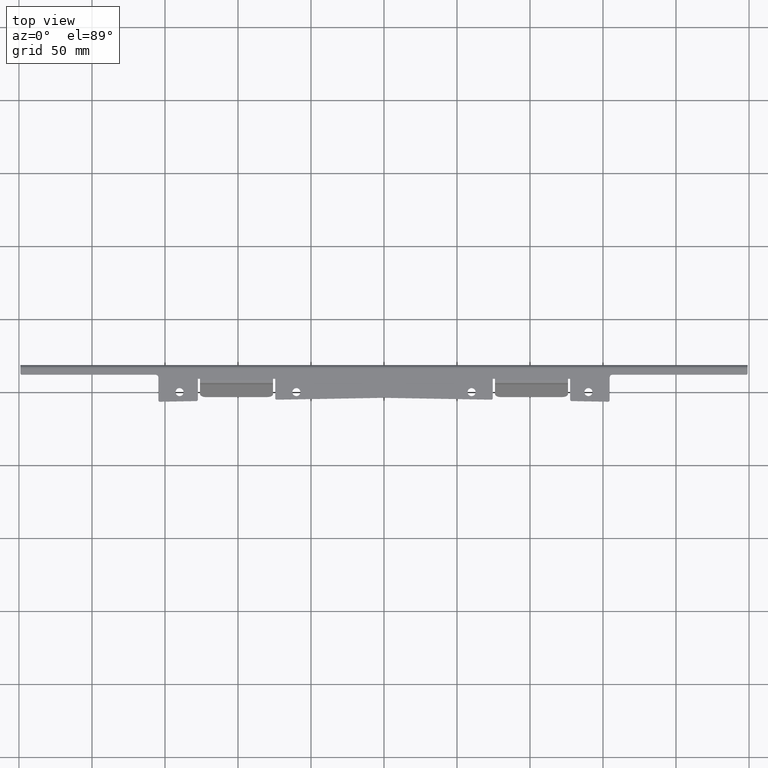
[diagram: clean part render]
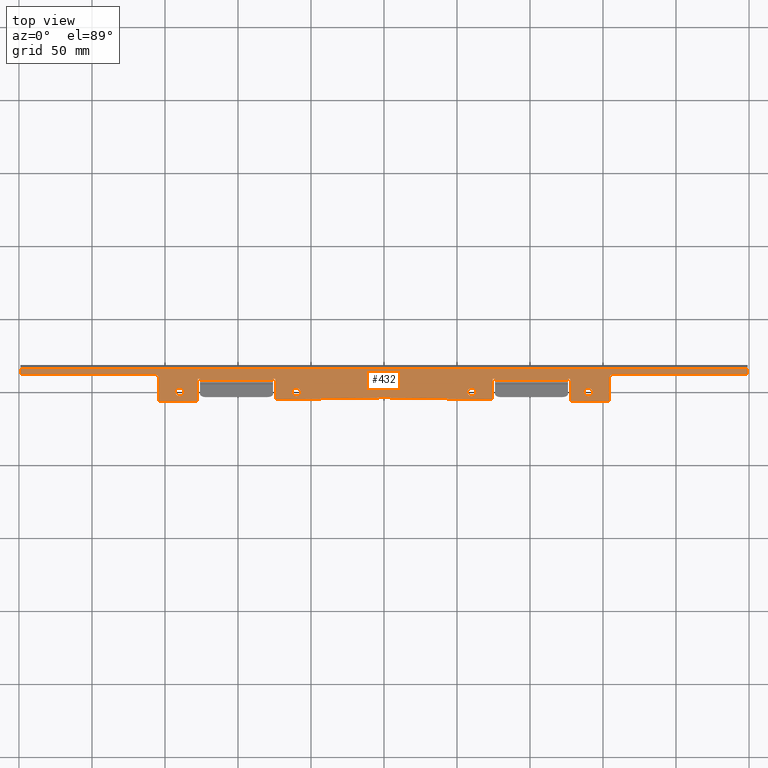
[diagram: same view with one face highlighted and labeled with its STEP entity id]
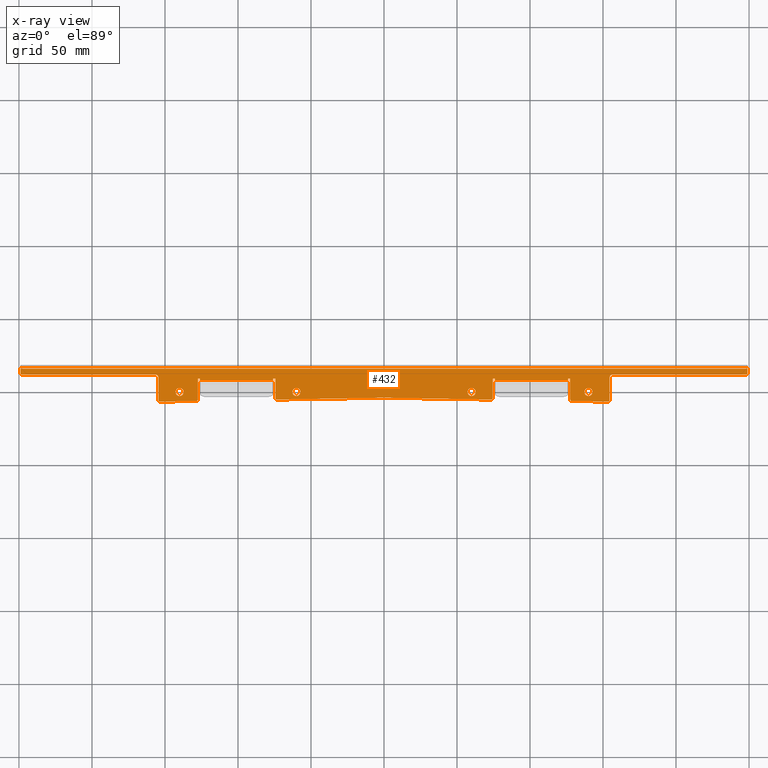
[diagram: x-ray of the same camera — body ghosted, the highlighted face saturated]
A machine part, top view. The second image highlights one B-rep face of the part: STEP entity #432.
The next image is the same camera in x-ray: the body ghosted, the highlighted face saturated — about 0% of this face is hidden behind the body in this view.
In plain terms, the highlighted planar face has unit normal (0, 0, -1).
Its self-contained STEP definition (entity closure, byte-faithful):
#2 = DIRECTION ( 'NONE',  ( -1.000000000000000000, 0.0000000000000000000, 0.0000000000000000000 ) ) ;
#8 = VERTEX_POINT ( 'NONE', #1864 ) ;
#12 = DIRECTION ( 'NONE',  ( -0.0000000000000000000, -0.0000000000000000000, 1.000000000000000000 ) ) ;
#32 = VECTOR ( 'NONE', #1382, 1000.000000000000000 ) ;
#33 = CARTESIAN_POINT ( 'NONE',  ( 154.4979356401569500, 11.27738266714972700, 0.0000000000000000000 ) ) ;
#42 = CARTESIAN_POINT ( 'NONE',  ( -74.50000000000001400, 8.577382667149670700, 0.0000000000000000000 ) ) ;
#43 = VECTOR ( 'NONE', #1676, 1000.000000000000000 ) ;
#44 = VERTEX_POINT ( 'NONE', #2051 ) ;
#62 = LINE ( 'NONE', #105, #1268 ) ;
#66 = EDGE_CURVE ( 'NONE', #1739, #304, #1253, .T. ) ;
#81 = DIRECTION ( 'NONE',  ( -1.000000000000000000, 0.0000000000000000000, 0.0000000000000000000 ) ) ;
#104 = EDGE_CURVE ( 'NONE', #1620, #2834, #543, .T. ) ;
#105 = CARTESIAN_POINT ( 'NONE',  ( 154.4979356401569500, -7.219388830725374200, 0.0000000000000000000 ) ) ;
#107 = ORIENTED_EDGE ( 'NONE', *, *, #1923, .T. ) ;
#113 = ORIENTED_EDGE ( 'NONE', *, *, #1274, .T. ) ;
#116 = AXIS2_PLACEMENT_3D ( 'NONE', #2134, #1067, #1293 ) ;
#117 = CARTESIAN_POINT ( 'NONE',  ( 74.50000000000001400, -5.823019670002781600, 0.0000000000000000000 ) ) ;
#130 = DIRECTION ( 'NONE',  ( 0.0000000000000000000, 0.0000000000000000000, -1.000000000000000000 ) ) ;
#134 = DIRECTION ( 'NONE',  ( 0.0000000000000000000, 0.0000000000000000000, 1.000000000000000000 ) ) ;
#142 = DIRECTION ( 'NONE',  ( -1.000000000000000000, 0.0000000000000000000, 0.0000000000000000000 ) ) ;
#149 = DIRECTION ( 'NONE',  ( -1.000000000000000000, 0.0000000000000000000, -0.0000000000000000000 ) ) ;
#153 = EDGE_CURVE ( 'NONE', #44, #1134, #2761, .T. ) ;
#155 = CIRCLE ( 'NONE', #2231, 2.750000000000030200 ) ;
#161 = VERTEX_POINT ( 'NONE', #581 ) ;
#166 = VERTEX_POINT ( 'NONE', #806 ) ;
#173 = CARTESIAN_POINT ( 'NONE',  ( 76.00000000000001400, 7.577382667149658200, 0.0000000000000000000 ) ) ;
#176 = ORIENTED_EDGE ( 'NONE', *, *, #775, .T. ) ;
#195 = VERTEX_POINT ( 'NONE', #2706 ) ;
#196 = CARTESIAN_POINT ( 'NONE',  ( -57.24999999999997900, -0.6226173328502879700, 0.0000000000000000000 ) ) ;
#197 = CARTESIAN_POINT ( 'NONE',  ( -74.50000000000001400, -5.823019670002781600, 0.0000000000000000000 ) ) ;
#208 = EDGE_CURVE ( 'NONE', #561, #610, #2361, .T. ) ;
#228 = VERTEX_POINT ( 'NONE', #494 ) ;
#230 = ORIENTED_EDGE ( 'NONE', *, *, #231, .F. ) ;
#231 = EDGE_CURVE ( 'NONE', #2343, #1613, #868, .T. ) ;
#243 = ORIENTED_EDGE ( 'NONE', *, *, #719, .T. ) ;
#259 = ORIENTED_EDGE ( 'NONE', *, *, #1243, .T. ) ;
#261 = ORIENTED_EDGE ( 'NONE', *, *, #846, .T. ) ;
#264 = VERTEX_POINT ( 'NONE', #2040 ) ;
#265 = EDGE_CURVE ( 'NONE', #2834, #166, #1707, .T. ) ;
#267 = DIRECTION ( 'NONE',  ( -1.000000000000000000, 0.0000000000000000000, 0.0000000000000000000 ) ) ;
#269 = CARTESIAN_POINT ( 'NONE',  ( -74.50000000000001400, 8.577382667149670700, 0.0000000000000000000 ) ) ;
#289 = DIRECTION ( 'NONE',  ( -1.000000000000000000, 0.0000000000000000000, 0.0000000000000000000 ) ) ;
#291 = ORIENTED_EDGE ( 'NONE', *, *, #1520, .F. ) ;
#294 = DIRECTION ( 'NONE',  ( 0.0000000000000000000, -1.000000000000000000, 0.0000000000000000000 ) ) ;
#304 = VERTEX_POINT ( 'NONE', #967 ) ;
#310 = LINE ( 'NONE', #197, #1982 ) ;
#332 = CARTESIAN_POINT ( 'NONE',  ( 248.0000000000000000, 12.27738266714975000, 0.0000000000000000000 ) ) ;
#333 = CARTESIAN_POINT ( 'NONE',  ( 249.0000000000000000, 12.27738266714975000, 0.0000000000000000000 ) ) ;
#343 = DIRECTION ( 'NONE',  ( -0.0000000000000000000, -1.000000000000000000, -0.0000000000000000000 ) ) ;
#350 = DIRECTION ( 'NONE',  ( 0.0000000000000000000, 0.0000000000000000000, 1.000000000000000000 ) ) ;
#351 = EDGE_CURVE ( 'NONE', #1158, #1620, #654, .T. ) ;
#366 = ORIENTED_EDGE ( 'NONE', *, *, #420, .T. ) ;
#375 = VECTOR ( 'NONE', #393, 1000.000000000000000 ) ;
#385 = CARTESIAN_POINT ( 'NONE',  ( 126.0000000000000000, 7.577382667149652000, 0.0000000000000000000 ) ) ;
#393 = DIRECTION ( 'NONE',  ( 1.000000000000000000, 0.0000000000000000000, 0.0000000000000000000 ) ) ;
#420 = EDGE_CURVE ( 'NONE', #2592, #2607, #1565, .T. ) ;
#424 = EDGE_CURVE ( 'NONE', #8, #1739, #1670, .T. ) ;
#432 = ADVANCED_FACE ( 'NONE', ( #503, #755, #2357, #1599, #2011 ), #1672, .F. ) ;
#438 = CIRCLE ( 'NONE', #1543, 1.000000000000000900 ) ;
#473 = EDGE_CURVE ( 'NONE', #195, #1467, #2246, .T. ) ;
#486 = CIRCLE ( 'NONE', #1549, 1.000000000000000900 ) ;
#488 = EDGE_CURVE ( 'NONE', #510, #1158, #1403, .T. ) ;
#491 = DIRECTION ( 'NONE',  ( 1.000000000000000000, -0.0000000000000000000, -0.0000000000000000000 ) ) ;
#494 = CARTESIAN_POINT ( 'NONE',  ( -127.5000000000000000, -5.765440848082815400, 0.0000000000000000000 ) ) ;
#503 = FACE_BOUND ( 'NONE', #1052, .T. ) ;
#504 = EDGE_CURVE ( 'NONE', #2419, #735, #1070, .T. ) ;
#510 = VERTEX_POINT ( 'NONE', #866 ) ;
#514 = AXIS2_PLACEMENT_3D ( 'NONE', #2380, #1927, #2 ) ;
#519 = DIRECTION ( 'NONE',  ( 0.9998476951563911600, -0.01745240643728700500, -0.0000000000000000000 ) ) ;
#531 = AXIS2_PLACEMENT_3D ( 'NONE', #2811, #1487, #2377 ) ;
#533 = DIRECTION ( 'NONE',  ( -1.000000000000000000, -0.0000000000000000000, -0.0000000000000000000 ) ) ;
#540 = EDGE_CURVE ( 'NONE', #727, #161, #310, .T. ) ;
#543 = LINE ( 'NONE', #977, #1233 ) ;
#553 = CARTESIAN_POINT ( 'NONE',  ( 73.48254759356272800, -5.805259972187044100, 0.0000000000000000000 ) ) ;
#561 = VERTEX_POINT ( 'NONE', #1486 ) ;
#566 = EDGE_CURVE ( 'NONE', #2493, #2350, #688, .T. ) ;
#568 = CARTESIAN_POINT ( 'NONE',  ( -154.4979356401569500, 11.27738266714972700, 0.0000000000000000000 ) ) ;
#581 = CARTESIAN_POINT ( 'NONE',  ( -74.50000000000001400, -4.805412277030652200, 0.0000000000000000000 ) ) ;
#583 = DIRECTION ( 'NONE',  ( 1.000000000000000000, 0.0000000000000000000, 0.0000000000000000000 ) ) ;
#591 = ORIENTED_EDGE ( 'NONE', *, *, #1188, .F. ) ;
#606 = ORIENTED_EDGE ( 'NONE', *, *, #1787, .T. ) ;
#610 = VERTEX_POINT ( 'NONE', #1760 ) ;
#631 = CARTESIAN_POINT ( 'NONE',  ( -154.4979356401569500, 9.277382667149726800, 0.0000000000000000000 ) ) ;
#642 = VERTEX_POINT ( 'NONE', #1951 ) ;
#646 = CARTESIAN_POINT ( 'NONE',  ( -128.5000000000000000, -5.765440848082815400, 0.0000000000000000000 ) ) ;
#651 = LINE ( 'NONE', #1234, #1162 ) ;
#654 = CIRCLE ( 'NONE', #1825, 1.000000000000000900 ) ;
#672 = VECTOR ( 'NONE', #2730, 1000.000000000000000 ) ;
#676 = DIRECTION ( 'NONE',  ( -0.0000000000000000000, 1.000000000000000000, -0.0000000000000000000 ) ) ;
#688 = CIRCLE ( 'NONE', #116, 1.000000000000000900 ) ;
#719 = EDGE_CURVE ( 'NONE', #166, #2493, #1598, .T. ) ;
#725 = VECTOR ( 'NONE', #676, 1000.000000000000000 ) ;
#727 = VERTEX_POINT ( 'NONE', #42 ) ;
#729 = DIRECTION ( 'NONE',  ( -0.0000000000000000000, -0.0000000000000000000, 1.000000000000000000 ) ) ;
#730 = CARTESIAN_POINT ( 'NONE',  ( -248.0000000000000000, 11.27738266714975000, 0.0000000000000000000 ) ) ;
#732 = EDGE_CURVE ( 'NONE', #1868, #2240, #438, .T. ) ;
#735 = VERTEX_POINT ( 'NONE', #1998 ) ;
#751 = CARTESIAN_POINT ( 'NONE',  ( -249.0000000000000000, 12.27738266714975000, 0.0000000000000000000 ) ) ;
#755 = FACE_BOUND ( 'NONE', #2099, .T. ) ;
#770 = DIRECTION ( 'NONE',  ( -1.000000000000000000, 0.0000000000000000000, 0.0000000000000000000 ) ) ;
#775 = EDGE_CURVE ( 'NONE', #1643, #727, #2244, .T. ) ;
#792 = ORIENTED_EDGE ( 'NONE', *, *, #153, .F. ) ;
#806 = CARTESIAN_POINT ( 'NONE',  ( -249.0000000000000000, 15.37738266714962700, 0.0000000000000000000 ) ) ;
#824 = CARTESIAN_POINT ( 'NONE',  ( 73.50000000000001400, -4.805412277030653100, 0.0000000000000000000 ) ) ;
#828 = ORIENTED_EDGE ( 'NONE', *, *, #732, .T. ) ;
#833 = CARTESIAN_POINT ( 'NONE',  ( -76.00000000000001400, 8.577382667149670700, 0.0000000000000000000 ) ) ;
#846 = EDGE_CURVE ( 'NONE', #2240, #2516, #62, .T. ) ;
#866 = CARTESIAN_POINT ( 'NONE',  ( 156.4979356401569500, 11.27738266714972700, 0.0000000000000000000 ) ) ;
#868 = CIRCLE ( 'NONE', #2478, 2.750000000000030200 ) ;
#883 = ORIENTED_EDGE ( 'NONE', *, *, #2515, .F. ) ;
#888 = CARTESIAN_POINT ( 'NONE',  ( 127.5000000000000000, 8.577382667149718600, 0.0000000000000000000 ) ) ;
#899 = CIRCLE ( 'NONE', #2570, 1.000000000000000900 ) ;
#902 = EDGE_CURVE ( 'NONE', #2607, #1643, #1763, .T. ) ;
#903 = ORIENTED_EDGE ( 'NONE', *, *, #473, .T. ) ;
#907 = AXIS2_PLACEMENT_3D ( 'NONE', #1443, #134, #1874 ) ;
#910 = LINE ( 'NONE', #2359, #43 ) ;
#928 = ORIENTED_EDGE ( 'NONE', *, *, #988, .T. ) ;
#947 = VECTOR ( 'NONE', #2160, 1000.000000000000000 ) ;
#950 = ORIENTED_EDGE ( 'NONE', *, *, #2540, .T. ) ;
#955 = ORIENTED_EDGE ( 'NONE', *, *, #2476, .T. ) ;
#958 = CARTESIAN_POINT ( 'NONE',  ( -126.0000000000000000, 7.577382667149652000, 0.0000000000000000000 ) ) ;
#960 = VECTOR ( 'NONE', #294, 1000.000000000000000 ) ;
#963 = CARTESIAN_POINT ( 'NONE',  ( 153.4979356401569500, -6.201781437753245600, 0.0000000000000000000 ) ) ;
#966 = CARTESIAN_POINT ( 'NONE',  ( 153.4804832337197000, -7.201629132909636700, 0.0000000000000000000 ) ) ;
#967 = CARTESIAN_POINT ( 'NONE',  ( -154.4979356401569500, -6.201781437753243000, 0.0000000000000000000 ) ) ;
#972 = ORIENTED_EDGE ( 'NONE', *, *, #351, .T. ) ;
#977 = CARTESIAN_POINT ( 'NONE',  ( 249.0000000000000000, 15.37738266714962700, 0.0000000000000000000 ) ) ;
#980 = CARTESIAN_POINT ( 'NONE',  ( -76.00000000000001400, 7.577382667149658200, 0.0000000000000000000 ) ) ;
#988 = EDGE_CURVE ( 'NONE', #264, #1315, #651, .T. ) ;
#993 = EDGE_CURVE ( 'NONE', #1893, #2712, #1535, .T. ) ;
#1006 = CIRCLE ( 'NONE', #2311, 1.000000000000000900 ) ;
#1016 = LINE ( 'NONE', #2545, #1217 ) ;
#1021 = CARTESIAN_POINT ( 'NONE',  ( 140.0000000000000000, -0.6226173328502775400, 0.0000000000000000000 ) ) ;
#1049 = CARTESIAN_POINT ( 'NONE',  ( -76.00000000000001400, 7.577382667149658200, 0.0000000000000000000 ) ) ;
#1052 = EDGE_LOOP ( 'NONE', ( #883, #230 ) ) ;
#1056 = ORIENTED_EDGE ( 'NONE', *, *, #2115, .T. ) ;
#1067 = DIRECTION ( 'NONE',  ( -0.0000000000000000000, -0.0000000000000000000, 1.000000000000000000 ) ) ;
#1070 = CIRCLE ( 'NONE', #1721, 1.000000000000000900 ) ;
#1074 = CARTESIAN_POINT ( 'NONE',  ( 126.0000000000000000, 7.577382667149652000, 0.0000000000000000000 ) ) ;
#1079 = VERTEX_POINT ( 'NONE', #1656 ) ;
#1094 = ORIENTED_EDGE ( 'NONE', *, *, #265, .T. ) ;
#1103 = VECTOR ( 'NONE', #1250, 1000.000000000000000 ) ;
#1115 = CARTESIAN_POINT ( 'NONE',  ( 127.5000000000000000, -5.765440848082815400, 0.0000000000000000000 ) ) ;
#1122 = CARTESIAN_POINT ( 'NONE',  ( -153.4979356401569500, -6.201781437753243000, 0.0000000000000000000 ) ) ;
#1134 = VERTEX_POINT ( 'NONE', #2166 ) ;
#1136 = LINE ( 'NONE', #33, #725 ) ;
#1139 = LINE ( 'NONE', #117, #1514 ) ;
#1142 = AXIS2_PLACEMENT_3D ( 'NONE', #2085, #1661, #149 ) ;
#1152 = VERTEX_POINT ( 'NONE', #2651 ) ;
#1153 = DIRECTION ( 'NONE',  ( 0.0000000000000000000, 0.0000000000000000000, -1.000000000000000000 ) ) ;
#1158 = VERTEX_POINT ( 'NONE', #2801 ) ;
#1162 = VECTOR ( 'NONE', #583, 1000.000000000000000 ) ;
#1177 = CARTESIAN_POINT ( 'NONE',  ( -154.4979356401569500, 11.27738266714972700, 0.0000000000000000000 ) ) ;
#1180 = DIRECTION ( 'NONE',  ( -0.0000000000000000000, -0.0000000000000000000, 1.000000000000000000 ) ) ;
#1182 = CARTESIAN_POINT ( 'NONE',  ( -74.50000000000001400, -5.823019670002781600, 0.0000000000000000000 ) ) ;
#1188 = EDGE_CURVE ( 'NONE', #1134, #44, #1469, .T. ) ;
#1189 = DIRECTION ( 'NONE',  ( 0.9998476951563911600, -0.01745240643728699200, -0.0000000000000000000 ) ) ;
#1194 = VECTOR ( 'NONE', #2511, 1000.000000000000000 ) ;
#1217 = VECTOR ( 'NONE', #343, 1000.000000000000000 ) ;
#1221 = DIRECTION ( 'NONE',  ( -0.0000000000000000000, -0.0000000000000000000, 1.000000000000000000 ) ) ;
#1224 = ORIENTED_EDGE ( 'NONE', *, *, #566, .T. ) ;
#1233 = VECTOR ( 'NONE', #2043, 1000.000000000000000 ) ;
#1234 = CARTESIAN_POINT ( 'NONE',  ( 74.50000000000001400, 8.577382667149670700, 0.0000000000000000000 ) ) ;
#1236 = ORIENTED_EDGE ( 'NONE', *, *, #1587, .T. ) ;
#1243 = EDGE_CURVE ( 'NONE', #642, #1967, #1433, .T. ) ;
#1250 = DIRECTION ( 'NONE',  ( 1.000000000000000000, 2.386339953572623500E-016, 0.0000000000000000000 ) ) ;
#1253 = LINE ( 'NONE', #1177, #672 ) ;
#1264 = ORIENTED_EDGE ( 'NONE', *, *, #1752, .F. ) ;
#1268 = VECTOR ( 'NONE', #1189, 1000.000000000000000 ) ;
#1271 = CARTESIAN_POINT ( 'NONE',  ( 128.4825475935627400, -6.765288543239205600, 0.0000000000000000000 ) ) ;
#1274 = EDGE_CURVE ( 'NONE', #228, #642, #2036, .T. ) ;
#1277 = AXIS2_PLACEMENT_3D ( 'NONE', #1341, #1153, #289 ) ;
#1293 = DIRECTION ( 'NONE',  ( -1.000000000000000000, 0.0000000000000000000, 0.0000000000000000000 ) ) ;
#1302 = CARTESIAN_POINT ( 'NONE',  ( -140.0000000000000000, -0.6226173328502775400, 0.0000000000000000000 ) ) ;
#1315 = VERTEX_POINT ( 'NONE', #1791 ) ;
#1336 = VECTOR ( 'NONE', #2269, 1000.000000000000000 ) ;
#1341 = CARTESIAN_POINT ( 'NONE',  ( 156.4979356401569500, 9.277382667149726800, 0.0000000000000000000 ) ) ;
#1351 = EDGE_LOOP ( 'NONE', ( #1526, #291 ) ) ;
#1382 = DIRECTION ( 'NONE',  ( 0.9998476951563911600, 0.01745240643728706100, 0.0000000000000000000 ) ) ;
#1393 = EDGE_CURVE ( 'NONE', #2767, #510, #2353, .T. ) ;
#1403 = LINE ( 'NONE', #2116, #1103 ) ;
#1433 = LINE ( 'NONE', #1963, #375 ) ;
#1442 = AXIS2_PLACEMENT_3D ( 'NONE', #1021, #2114, #2553 ) ;
#1443 = CARTESIAN_POINT ( 'NONE',  ( 59.99999999999999300, -0.6226173328502879700, 0.0000000000000000000 ) ) ;
#1450 = DIRECTION ( 'NONE',  ( 1.000000000000000000, 1.214306433183765200E-016, -0.0000000000000000000 ) ) ;
#1453 = EDGE_CURVE ( 'NONE', #1967, #2592, #1626, .T. ) ;
#1463 = CARTESIAN_POINT ( 'NONE',  ( -59.99999999999999300, -0.6226173328502879700, 0.0000000000000000000 ) ) ;
#1466 = ORIENTED_EDGE ( 'NONE', *, *, #504, .T. ) ;
#1467 = VERTEX_POINT ( 'NONE', #1840 ) ;
#1469 = CIRCLE ( 'NONE', #1561, 2.750000000000009300 ) ;
#1486 = CARTESIAN_POINT ( 'NONE',  ( -73.48254759356272800, -5.805259972187044100, 0.0000000000000000000 ) ) ;
#1487 = DIRECTION ( 'NONE',  ( 0.0000000000000000000, 0.0000000000000000000, 1.000000000000000000 ) ) ;
#1503 = VECTOR ( 'NONE', #1942, 1000.000000000000000 ) ;
#1512 = DIRECTION ( 'NONE',  ( -0.0000000000000000000, -0.0000000000000000000, 1.000000000000000000 ) ) ;
#1514 = VECTOR ( 'NONE', #519, 1000.000000000000100 ) ;
#1520 = EDGE_CURVE ( 'NONE', #1904, #2233, #2108, .T. ) ;
#1526 = ORIENTED_EDGE ( 'NONE', *, *, #1683, .F. ) ;
#1535 = LINE ( 'NONE', #1867, #2866 ) ;
#1543 = AXIS2_PLACEMENT_3D ( 'NONE', #1789, #729, #1771 ) ;
#1549 = AXIS2_PLACEMENT_3D ( 'NONE', #646, #1512, #2143 ) ;
#1561 = AXIS2_PLACEMENT_3D ( 'NONE', #1697, #2661, #2179 ) ;
#1565 = LINE ( 'NONE', #1871, #2181 ) ;
#1569 = EDGE_CURVE ( 'NONE', #2350, #8, #2451, .T. ) ;
#1581 = CARTESIAN_POINT ( 'NONE',  ( 137.2499999999999700, -0.6226173328502772100, 0.0000000000000000000 ) ) ;
#1584 = VECTOR ( 'NONE', #2537, 1000.000000000000000 ) ;
#1587 = EDGE_CURVE ( 'NONE', #2712, #1868, #1016, .T. ) ;
#1598 = LINE ( 'NONE', #2446, #960 ) ;
#1599 = FACE_BOUND ( 'NONE', #2560, .T. ) ;
#1613 = VERTEX_POINT ( 'NONE', #1860 ) ;
#1620 = VERTEX_POINT ( 'NONE', #333 ) ;
#1621 = DIRECTION ( 'NONE',  ( 0.0000000000000000000, 0.0000000000000000000, 1.000000000000000000 ) ) ;
#1626 = LINE ( 'NONE', #958, #1336 ) ;
#1643 = VERTEX_POINT ( 'NONE', #833 ) ;
#1656 = CARTESIAN_POINT ( 'NONE',  ( 76.00000000000001400, 7.577382667149664500, 3.903127820947816000E-015 ) ) ;
#1660 = ORIENTED_EDGE ( 'NONE', *, *, #424, .T. ) ;
#1661 = DIRECTION ( 'NONE',  ( 0.0000000000000000000, 0.0000000000000000000, -1.000000000000000000 ) ) ;
#1663 = ORIENTED_EDGE ( 'NONE', *, *, #2241, .T. ) ;
#1670 = CIRCLE ( 'NONE', #1926, 2.000000000000001800 ) ;
#1672 = PLANE ( 'NONE',  #1142 ) ;
#1676 = DIRECTION ( 'NONE',  ( 0.0000000000000000000, 1.000000000000000000, 0.0000000000000000000 ) ) ;
#1680 = ORIENTED_EDGE ( 'NONE', *, *, #1453, .T. ) ;
#1683 = EDGE_CURVE ( 'NONE', #2233, #1904, #2381, .T. ) ;
#1697 = CARTESIAN_POINT ( 'NONE',  ( 59.99999999999999300, -0.6226173328502879700, 0.0000000000000000000 ) ) ;
#1707 = LINE ( 'NONE', #2483, #1949 ) ;
#1710 = DIRECTION ( 'NONE',  ( -0.0000000000000000000, -1.000000000000000000, -0.0000000000000000000 ) ) ;
#1712 = CIRCLE ( 'NONE', #2633, 1.000000000000000900 ) ;
#1716 = DIRECTION ( 'NONE',  ( 0.0000000000000000000, 0.0000000000000000000, 1.000000000000000000 ) ) ;
#1721 = AXIS2_PLACEMENT_3D ( 'NONE', #824, #2365, #2831 ) ;
#1723 = CARTESIAN_POINT ( 'NONE',  ( 76.00000000000001400, 7.577382667149658200, 0.0000000000000000000 ) ) ;
#1727 = ORIENTED_EDGE ( 'NONE', *, *, #2154, .F. ) ;
#1739 = VERTEX_POINT ( 'NONE', #631 ) ;
#1752 = EDGE_CURVE ( 'NONE', #1811, #1152, #2559, .T. ) ;
#1760 = CARTESIAN_POINT ( 'NONE',  ( -1.210230878029361600E-013, -4.522617332850309400, 0.0000000000000000000 ) ) ;
#1763 = LINE ( 'NONE', #980, #1194 ) ;
#1765 = CARTESIAN_POINT ( 'NONE',  ( 126.0000000000000000, 8.577382667149718600, 0.0000000000000000000 ) ) ;
#1771 = DIRECTION ( 'NONE',  ( -1.000000000000000000, 0.0000000000000000000, 0.0000000000000000000 ) ) ;
#1784 = ORIENTED_EDGE ( 'NONE', *, *, #104, .T. ) ;
#1787 = EDGE_CURVE ( 'NONE', #1079, #1950, #2484, .T. ) ;
#1789 = CARTESIAN_POINT ( 'NONE',  ( 128.5000000000000000, -5.765440848082815400, 0.0000000000000000000 ) ) ;
#1791 = CARTESIAN_POINT ( 'NONE',  ( 76.00000000000001400, 8.577382667149670700, 0.0000000000000000000 ) ) ;
#1808 = VECTOR ( 'NONE', #2304, 1000.000000000000000 ) ;
#1811 = VERTEX_POINT ( 'NONE', #2631 ) ;
#1825 = AXIS2_PLACEMENT_3D ( 'NONE', #332, #1221, #2751 ) ;
#1833 = VECTOR ( 'NONE', #491, 1000.000000000000000 ) ;
#1840 = CARTESIAN_POINT ( 'NONE',  ( -128.4825475935627400, -6.765288543239205600, 0.0000000000000000000 ) ) ;
#1860 = CARTESIAN_POINT ( 'NONE',  ( 142.7500000000000600, -0.6226173328502775400, 0.0000000000000000000 ) ) ;
#1864 = CARTESIAN_POINT ( 'NONE',  ( -156.4979356401569500, 11.27738266714972700, 0.0000000000000000000 ) ) ;
#1867 = CARTESIAN_POINT ( 'NONE',  ( 127.5000000000000000, 8.577382667149718600, 0.0000000000000000000 ) ) ;
#1868 = VERTEX_POINT ( 'NONE', #1115 ) ;
#1871 = CARTESIAN_POINT ( 'NONE',  ( -76.00000000000001400, 7.577382667149658200, 0.0000000000000000000 ) ) ;
#1874 = DIRECTION ( 'NONE',  ( 1.000000000000000000, 0.0000000000000000000, 0.0000000000000000000 ) ) ;
#1893 = VERTEX_POINT ( 'NONE', #1765 ) ;
#1894 = DIRECTION ( 'NONE',  ( 0.0000000000000000000, 1.000000000000000000, 0.0000000000000000000 ) ) ;
#1896 = ORIENTED_EDGE ( 'NONE', *, *, #540, .T. ) ;
#1904 = VERTEX_POINT ( 'NONE', #2434 ) ;
#1922 = DIRECTION ( 'NONE',  ( 0.0000000000000000000, 1.000000000000000000, 0.0000000000000000000 ) ) ;
#1923 = EDGE_CURVE ( 'NONE', #735, #264, #910, .T. ) ;
#1926 = AXIS2_PLACEMENT_3D ( 'NONE', #2762, #130, #142 ) ;
#1927 = DIRECTION ( 'NONE',  ( 0.0000000000000000000, 0.0000000000000000000, 1.000000000000000000 ) ) ;
#1942 = DIRECTION ( 'NONE',  ( 0.9998476951563911600, 0.01745240643728699200, 0.0000000000000000000 ) ) ;
#1949 = VECTOR ( 'NONE', #533, 1000.000000000000000 ) ;
#1950 = VERTEX_POINT ( 'NONE', #385 ) ;
#1951 = CARTESIAN_POINT ( 'NONE',  ( -127.5000000000000000, 8.577382667149718600, 0.0000000000000000000 ) ) ;
#1963 = CARTESIAN_POINT ( 'NONE',  ( -127.5000000000000000, 8.577382667149718600, 0.0000000000000000000 ) ) ;
#1967 = VERTEX_POINT ( 'NONE', #2612 ) ;
#1982 = VECTOR ( 'NONE', #1710, 1000.000000000000000 ) ;
#1998 = CARTESIAN_POINT ( 'NONE',  ( 74.50000000000001400, -4.805412277030653100, 0.0000000000000000000 ) ) ;
#2011 = FACE_OUTER_BOUND ( 'NONE', #2584, .T. ) ;
#2021 = CARTESIAN_POINT ( 'NONE',  ( 248.9999999999999400, 15.37738266714962900, -8.673617379884035500E-016 ) ) ;
#2026 = ORIENTED_EDGE ( 'NONE', *, *, #208, .T. ) ;
#2031 = CARTESIAN_POINT ( 'NONE',  ( -73.50000000000001400, -4.805412277030652200, 0.0000000000000000000 ) ) ;
#2036 = LINE ( 'NONE', #2186, #2393 ) ;
#2040 = CARTESIAN_POINT ( 'NONE',  ( 74.50000000000001400, 8.577382667149670700, 0.0000000000000000000 ) ) ;
#2043 = DIRECTION ( 'NONE',  ( -0.0000000000000000000, 1.000000000000000000, -0.0000000000000000000 ) ) ;
#2051 = CARTESIAN_POINT ( 'NONE',  ( 57.24999999999997200, -0.6226173328502876400, 0.0000000000000000000 ) ) ;
#2083 = ORIENTED_EDGE ( 'NONE', *, *, #2720, .T. ) ;
#2085 = CARTESIAN_POINT ( 'NONE',  ( 0.0000000000000000000, 0.0000000000000000000, 0.0000000000000000000 ) ) ;
#2087 = DIRECTION ( 'NONE',  ( -1.000000000000000000, 0.0000000000000000000, 0.0000000000000000000 ) ) ;
#2093 = DIRECTION ( 'NONE',  ( 1.000000000000000000, -0.0000000000000000000, -0.0000000000000000000 ) ) ;
#2095 = VECTOR ( 'NONE', #1922, 1000.000000000000000 ) ;
#2097 = VERTEX_POINT ( 'NONE', #2532 ) ;
#2099 = EDGE_LOOP ( 'NONE', ( #591, #792 ) ) ;
#2102 = ORIENTED_EDGE ( 'NONE', *, *, #2789, .T. ) ;
#2108 = CIRCLE ( 'NONE', #2816, 2.750000000000009300 ) ;
#2114 = DIRECTION ( 'NONE',  ( 0.0000000000000000000, 0.0000000000000000000, 1.000000000000000000 ) ) ;
#2115 = EDGE_CURVE ( 'NONE', #1467, #228, #486, .T. ) ;
#2116 = CARTESIAN_POINT ( 'NONE',  ( 154.4979356401569500, 11.27738266714972700, 0.0000000000000000000 ) ) ;
#2118 = LINE ( 'NONE', #173, #1808 ) ;
#2134 = CARTESIAN_POINT ( 'NONE',  ( -248.0000000000000000, 12.27738266714975000, 0.0000000000000000000 ) ) ;
#2143 = DIRECTION ( 'NONE',  ( -1.000000000000000000, 8.673617379884027600E-016, 0.0000000000000000000 ) ) ;
#2154 = EDGE_CURVE ( 'NONE', #1152, #1811, #155, .T. ) ;
#2157 = CIRCLE ( 'NONE', #1442, 2.750000000000030200 ) ;
#2158 = ORIENTED_EDGE ( 'NONE', *, *, #66, .T. ) ;
#2160 = DIRECTION ( 'NONE',  ( 1.000000000000000000, -1.214306433183765200E-016, 0.0000000000000000000 ) ) ;
#2166 = CARTESIAN_POINT ( 'NONE',  ( 62.75000000000000000, -0.6226173328502879700, 0.0000000000000000000 ) ) ;
#2179 = DIRECTION ( 'NONE',  ( 1.000000000000000000, 0.0000000000000000000, 0.0000000000000000000 ) ) ;
#2181 = VECTOR ( 'NONE', #1450, 1000.000000000000000 ) ;
#2186 = CARTESIAN_POINT ( 'NONE',  ( -127.5000000000000000, -6.748138111198501000, 0.0000000000000000000 ) ) ;
#2223 = DIRECTION ( 'NONE',  ( -0.0000000000000000000, -0.0000000000000000000, 1.000000000000000000 ) ) ;
#2231 = AXIS2_PLACEMENT_3D ( 'NONE', #1302, #1716, #2634 ) ;
#2233 = VERTEX_POINT ( 'NONE', #196 ) ;
#2240 = VERTEX_POINT ( 'NONE', #1271 ) ;
#2241 = EDGE_CURVE ( 'NONE', #1950, #1893, #2338, .T. ) ;
#2244 = LINE ( 'NONE', #269, #1833 ) ;
#2246 = LINE ( 'NONE', #2567, #1503 ) ;
#2258 = ORIENTED_EDGE ( 'NONE', *, *, #2676, .T. ) ;
#2269 = DIRECTION ( 'NONE',  ( -0.0000000000000000000, -1.000000000000000000, -0.0000000000000000000 ) ) ;
#2288 = ORIENTED_EDGE ( 'NONE', *, *, #1393, .T. ) ;
#2304 = DIRECTION ( 'NONE',  ( -0.0000000000000000000, -1.000000000000000000, -0.0000000000000000000 ) ) ;
#2311 = AXIS2_PLACEMENT_3D ( 'NONE', #2031, #1180, #770 ) ;
#2336 = ORIENTED_EDGE ( 'NONE', *, *, #993, .T. ) ;
#2338 = LINE ( 'NONE', #1074, #2095 ) ;
#2341 = CARTESIAN_POINT ( 'NONE',  ( -126.0000000000000000, 7.577382667149646700, -4.336808689942017700E-016 ) ) ;
#2343 = VERTEX_POINT ( 'NONE', #1581 ) ;
#2350 = VERTEX_POINT ( 'NONE', #730 ) ;
#2353 = CIRCLE ( 'NONE', #1277, 2.000000000000001800 ) ;
#2357 = FACE_BOUND ( 'NONE', #1351, .T. ) ;
#2359 = CARTESIAN_POINT ( 'NONE',  ( 74.50000000000001400, -5.823019670002781600, 0.0000000000000000000 ) ) ;
#2361 = LINE ( 'NONE', #1182, #32 ) ;
#2365 = DIRECTION ( 'NONE',  ( -0.0000000000000000000, -0.0000000000000000000, 1.000000000000000000 ) ) ;
#2377 = DIRECTION ( 'NONE',  ( -1.000000000000000000, 0.0000000000000000000, 0.0000000000000000000 ) ) ;
#2380 = CARTESIAN_POINT ( 'NONE',  ( -140.0000000000000000, -0.6226173328502775400, 0.0000000000000000000 ) ) ;
#2381 = CIRCLE ( 'NONE', #531, 2.750000000000009300 ) ;
#2393 = VECTOR ( 'NONE', #1894, 1000.000000000000000 ) ;
#2419 = VERTEX_POINT ( 'NONE', #553 ) ;
#2434 = CARTESIAN_POINT ( 'NONE',  ( -62.75000000000000000, -0.6226173328502876400, 0.0000000000000000000 ) ) ;
#2437 = CARTESIAN_POINT ( 'NONE',  ( 154.4979356401569500, 9.277382667149726800, 0.0000000000000000000 ) ) ;
#2446 = CARTESIAN_POINT ( 'NONE',  ( -249.0000000000000000, 15.37738266714962700, 0.0000000000000000000 ) ) ;
#2447 = ORIENTED_EDGE ( 'NONE', *, *, #902, .T. ) ;
#2451 = LINE ( 'NONE', #568, #1584 ) ;
#2466 = ORIENTED_EDGE ( 'NONE', *, *, #488, .T. ) ;
#2476 = EDGE_CURVE ( 'NONE', #610, #2419, #1139, .T. ) ;
#2478 = AXIS2_PLACEMENT_3D ( 'NONE', #2726, #1621, #2742 ) ;
#2483 = CARTESIAN_POINT ( 'NONE',  ( -249.0000000000000000, 15.37738266714962700, 0.0000000000000000000 ) ) ;
#2484 = LINE ( 'NONE', #1723, #947 ) ;
#2493 = VERTEX_POINT ( 'NONE', #751 ) ;
#2511 = DIRECTION ( 'NONE',  ( 0.0000000000000000000, 1.000000000000000000, 0.0000000000000000000 ) ) ;
#2515 = EDGE_CURVE ( 'NONE', #1613, #2343, #2157, .T. ) ;
#2516 = VERTEX_POINT ( 'NONE', #966 ) ;
#2532 = CARTESIAN_POINT ( 'NONE',  ( 154.4979356401569500, -6.201781437753246500, 0.0000000000000000000 ) ) ;
#2537 = DIRECTION ( 'NONE',  ( 1.000000000000000000, -2.386339953572623500E-016, -0.0000000000000000000 ) ) ;
#2540 = EDGE_CURVE ( 'NONE', #1315, #1079, #2118, .T. ) ;
#2545 = CARTESIAN_POINT ( 'NONE',  ( 127.5000000000000000, -6.748138111198501000, 0.0000000000000000000 ) ) ;
#2553 = DIRECTION ( 'NONE',  ( 1.000000000000000000, 0.0000000000000000000, 0.0000000000000000000 ) ) ;
#2559 = CIRCLE ( 'NONE', #514, 2.750000000000030200 ) ;
#2560 = EDGE_LOOP ( 'NONE', ( #1264, #1727 ) ) ;
#2567 = CARTESIAN_POINT ( 'NONE',  ( -154.4979356401569500, -7.219388830725374200, 0.0000000000000000000 ) ) ;
#2570 = AXIS2_PLACEMENT_3D ( 'NONE', #1122, #12, #267 ) ;
#2584 = EDGE_LOOP ( 'NONE', ( #243, #1224, #2858, #1660, #2158, #2258, #903, #1056, #113, #259, #1680, #366, #2447, #176, #1896, #2746, #2026, #955, #1466, #107, #928, #950, #606, #1663, #2336, #1236, #828, #261, #2102, #2083, #2288, #2466, #972, #1784, #1094 ) ) ;
#2592 = VERTEX_POINT ( 'NONE', #2341 ) ;
#2607 = VERTEX_POINT ( 'NONE', #1049 ) ;
#2612 = CARTESIAN_POINT ( 'NONE',  ( -126.0000000000000000, 8.577382667149718600, 0.0000000000000000000 ) ) ;
#2623 = EDGE_CURVE ( 'NONE', #161, #561, #1006, .T. ) ;
#2631 = CARTESIAN_POINT ( 'NONE',  ( -137.2499999999999700, -0.6226173328502775400, 0.0000000000000000000 ) ) ;
#2633 = AXIS2_PLACEMENT_3D ( 'NONE', #963, #2223, #81 ) ;
#2634 = DIRECTION ( 'NONE',  ( -1.000000000000000000, 0.0000000000000000000, 0.0000000000000000000 ) ) ;
#2651 = CARTESIAN_POINT ( 'NONE',  ( -142.7500000000000600, -0.6226173328502772100, 0.0000000000000000000 ) ) ;
#2661 = DIRECTION ( 'NONE',  ( 0.0000000000000000000, 0.0000000000000000000, 1.000000000000000000 ) ) ;
#2676 = EDGE_CURVE ( 'NONE', #304, #195, #899, .T. ) ;
#2706 = CARTESIAN_POINT ( 'NONE',  ( -153.4804832337197000, -7.201629132909636700, 0.0000000000000000000 ) ) ;
#2712 = VERTEX_POINT ( 'NONE', #888 ) ;
#2720 = EDGE_CURVE ( 'NONE', #2097, #2767, #1136, .T. ) ;
#2726 = CARTESIAN_POINT ( 'NONE',  ( 140.0000000000000000, -0.6226173328502775400, 0.0000000000000000000 ) ) ;
#2730 = DIRECTION ( 'NONE',  ( 0.0000000000000000000, -1.000000000000000000, 0.0000000000000000000 ) ) ;
#2742 = DIRECTION ( 'NONE',  ( 1.000000000000000000, 0.0000000000000000000, 0.0000000000000000000 ) ) ;
#2746 = ORIENTED_EDGE ( 'NONE', *, *, #2623, .T. ) ;
#2751 = DIRECTION ( 'NONE',  ( -1.000000000000000000, 0.0000000000000000000, 0.0000000000000000000 ) ) ;
#2761 = CIRCLE ( 'NONE', #907, 2.750000000000009300 ) ;
#2762 = CARTESIAN_POINT ( 'NONE',  ( -156.4979356401569500, 9.277382667149726800, 0.0000000000000000000 ) ) ;
#2767 = VERTEX_POINT ( 'NONE', #2437 ) ;
#2789 = EDGE_CURVE ( 'NONE', #2516, #2097, #1712, .T. ) ;
#2801 = CARTESIAN_POINT ( 'NONE',  ( 248.0000000000000000, 11.27738266714975000, 0.0000000000000000000 ) ) ;
#2811 = CARTESIAN_POINT ( 'NONE',  ( -59.99999999999999300, -0.6226173328502879700, 0.0000000000000000000 ) ) ;
#2816 = AXIS2_PLACEMENT_3D ( 'NONE', #1463, #350, #2087 ) ;
#2831 = DIRECTION ( 'NONE',  ( -1.000000000000000000, 0.0000000000000000000, 0.0000000000000000000 ) ) ;
#2834 = VERTEX_POINT ( 'NONE', #2021 ) ;
#2858 = ORIENTED_EDGE ( 'NONE', *, *, #1569, .T. ) ;
#2866 = VECTOR ( 'NONE', #2093, 1000.000000000000000 ) ;